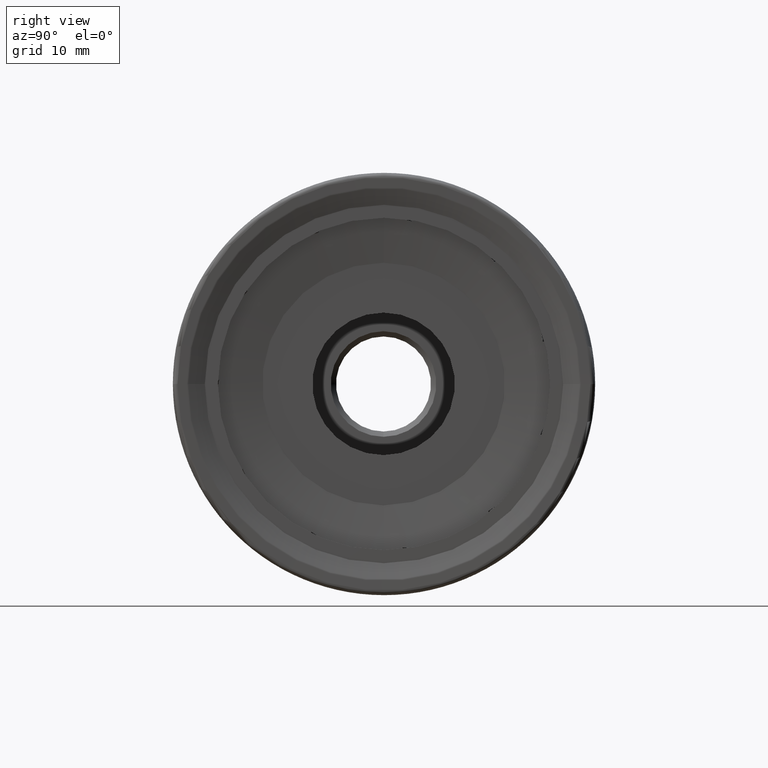
[diagram: clean part render]
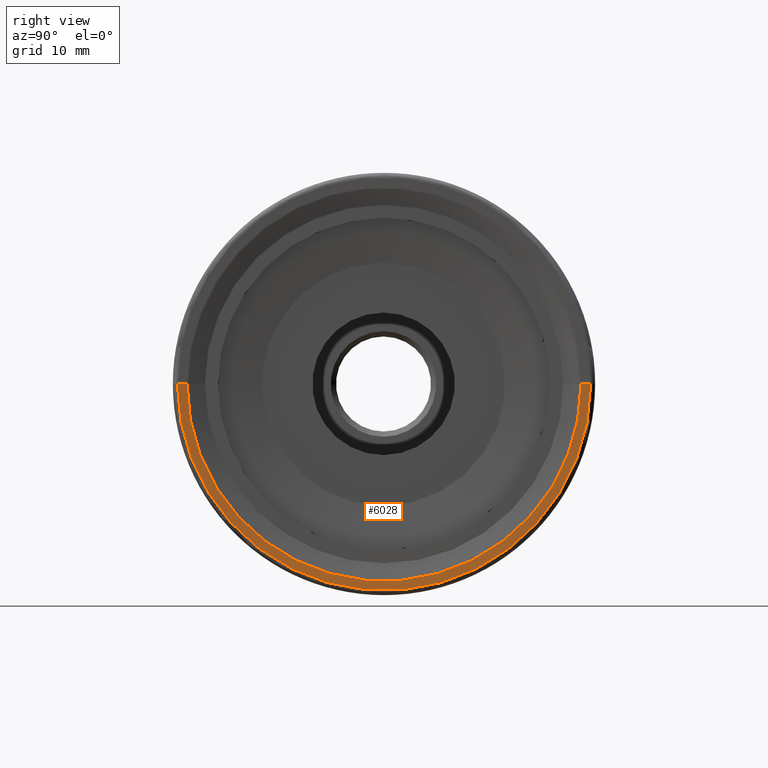
[diagram: same view with one face highlighted and labeled with its STEP entity id]
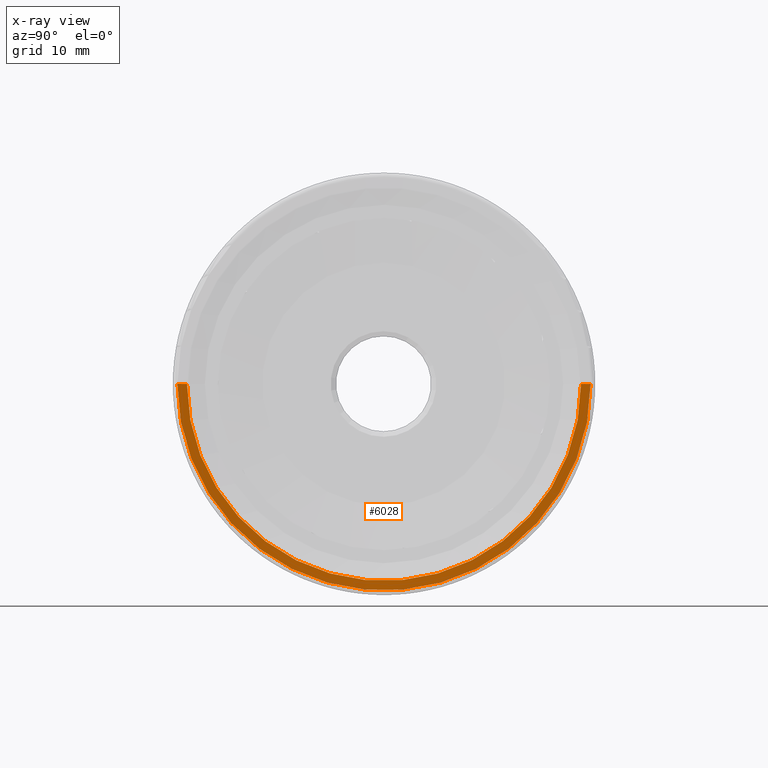
[diagram: x-ray of the same camera — body ghosted, the highlighted face saturated]
A machine part, right view. The second image highlights one B-rep face of the part: STEP entity #6028.
The next image is the same camera in x-ray: the body ghosted, the highlighted face saturated — about 0% of this face is hidden behind the body in this view.
In plain terms, the highlighted conical surface has half-angle 88.225 deg.
Its self-contained STEP definition (entity closure, byte-faithful):
#100 = CARTESIAN_POINT ( 'NONE',  ( 0.4498094004054028500, -19.51942813533848300, 2.421435466204023600E-015 ) ) ;
#106 = CARTESIAN_POINT ( 'NONE',  ( 0.4217211606841999600, -18.61297767681271200, 2.285353498692794900E-015 ) ) ;
#677 = VERTEX_POINT ( 'NONE', #100 ) ;
#686 = VERTEX_POINT ( 'NONE', #106 ) ;
#1618 = DIRECTION ( 'NONE',  ( -1.218965579485147500E-016, 1.000000000000000000, 0.0000000000000000000 ) ) ;
#1619 = CARTESIAN_POINT ( 'NONE',  ( 0.4498094004054004600, 0.04834982009453017700, 0.0000000000000000000 ) ) ;
#1620 = FACE_OUTER_BOUND ( 'NONE', #5575, .T. ) ;
#1621 = DIRECTION ( 'NONE',  ( 1.000000000000000000, 1.224527162102617500E-016, -0.0000000000000000000 ) ) ;
#3809 = ORIENTED_EDGE ( 'NONE', *, *, #6187, .T. ) ;
#3810 = ORIENTED_EDGE ( 'NONE', *, *, #6214, .F. ) ;
#3817 = ORIENTED_EDGE ( 'NONE', *, *, #6212, .T. ) ;
#3834 = ORIENTED_EDGE ( 'NONE', *, *, #6217, .F. ) ;
#4978 = CONICAL_SURFACE ( 'NONE', #4979, 19.56777795543301200, 1.539819173504007200 ) ;
#4979 = AXIS2_PLACEMENT_3D ( 'NONE', #1619, #1621, #1618 ) ;
#5141 = CIRCLE ( 'NONE', #5145, 19.56777795543301200 ) ;
#5145 = AXIS2_PLACEMENT_3D ( 'NONE', #10047, #10048, #10049 ) ;
#5171 = VECTOR ( 'NONE', #10135, 1000.000000000000000 ) ;
#5174 = VECTOR ( 'NONE', #10139, 999.9999999999998900 ) ;
#5179 = CIRCLE ( 'NONE', #5182, 18.66132749690724100 ) ;
#5182 = AXIS2_PLACEMENT_3D ( 'NONE', #10149, #10150, #10151 ) ;
#5293 = VERTEX_POINT ( 'NONE', #8301 ) ;
#5322 = VERTEX_POINT ( 'NONE', #8327 ) ;
#5575 = EDGE_LOOP ( 'NONE', ( #3834, #3817, #3809, #3810 ) ) ;
#6028 = ADVANCED_FACE ( 'NONE', ( #1620 ), #4978, .F. ) ;
#6187 = EDGE_CURVE ( 'NONE', #677, #5293, #5141, .T. ) ;
#6212 = EDGE_CURVE ( 'NONE', #686, #677, #10119, .T. ) ;
#6214 = EDGE_CURVE ( 'NONE', #5322, #5293, #10130, .T. ) ;
#6217 = EDGE_CURVE ( 'NONE', #686, #5322, #5179, .T. ) ;
#8301 = CARTESIAN_POINT ( 'NONE',  ( 0.4498094004053980700, 19.61612777552754100, 0.0000000000000000000 ) ) ;
#8327 = CARTESIAN_POINT ( 'NONE',  ( 0.4217211606841953500, 18.70967731700177300, 0.0000000000000000000 ) ) ;
#10047 = CARTESIAN_POINT ( 'NONE',  ( 0.4498094004054004600, 0.04834982009453017700, 0.0000000000000000000 ) ) ;
#10048 = DIRECTION ( 'NONE',  ( 1.000000000000000000, 1.224527162102617500E-016, -0.0000000000000000000 ) ) ;
#10049 = DIRECTION ( 'NONE',  ( -1.218965579485147500E-016, 1.000000000000000000, 0.0000000000000000000 ) ) ;
#10119 = LINE ( 'NONE', #10126, #5171 ) ;
#10126 = CARTESIAN_POINT ( 'NONE',  ( 0.4498094004054028500, -19.51942813533848300, 2.396361663954717700E-015 ) ) ;
#10130 = LINE ( 'NONE', #10131, #5174 ) ;
#10131 = CARTESIAN_POINT ( 'NONE',  ( 0.4498094004053980700, 19.61612777552754100, 0.0000000000000000000 ) ) ;
#10135 = DIRECTION ( 'NONE',  ( 0.03097219933167099200, -0.9995202463524984800, 1.224059270378561100E-016 ) ) ;
#10139 = DIRECTION ( 'NONE',  ( 0.03097219933167075200, 0.9995202463524985900, 0.0000000000000000000 ) ) ;
#10149 = CARTESIAN_POINT ( 'NONE',  ( 0.4217211606841976300, 0.04834982009453017000, 0.0000000000000000000 ) ) ;
#10150 = DIRECTION ( 'NONE',  ( 1.000000000000000000, 1.224527162102617500E-016, -0.0000000000000000000 ) ) ;
#10151 = DIRECTION ( 'NONE',  ( -1.220076418784729800E-016, 1.000000000000000000, 0.0000000000000000000 ) ) ;